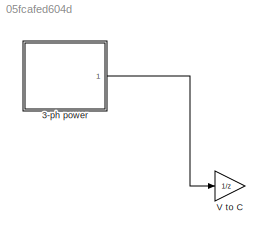
MODEL slx_05fcafed604d
KIND model
CONFIG AbsTol = auto
CONFIG EnableMultiTasking = off
CONFIG FixedStep = sampletime
CONFIG MaxStep = 1e-4
CONFIG MinStep = auto
CONFIG RelTol = 1e-5
CONFIG SampleTimeConstraint = Unconstrained
CONFIG Solver = VariableStepAuto
CONFIG SolverName = VariableStepAuto
CONFIG StartTime = 0.0
CONFIG StopTime = 0.2
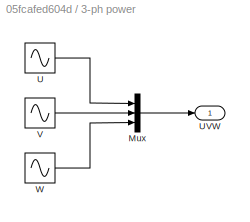
BLOCK [SubSystem] 3-ph power
  Ports = [0, 1]
  RequestExecContextInheritance = off
BLOCK [Mux] 3-ph power/Mux
  DisplayOption = bar
  Inputs = 3
  Ports = [3, 1]
BLOCK [Sin] 3-ph power/U
  Amplitude = U1
  Frequency = 2*pi*f
  Ports = [0, 1]
  SampleTime = 0
BLOCK [Outport] 3-ph power/UVW
  IconDisplay = Port number
BLOCK [Sin] 3-ph power/V
  Amplitude = U1
  Frequency = 2*pi*f
  Phase = -2*pi/3
  Ports = [0, 1]
  SampleTime = 0
BLOCK [Sin] 3-ph power/W
  Amplitude = U1
  Frequency = 2*pi*f
  Phase = -4*pi/3
  Ports = [0, 1]
  SampleTime = 0
BLOCK [Gain] V to C
  Gain = 1/z
  OutDataTypeStr = Inherit: Inherit via internal rule
  ParamDataTypeStr = Inherit: Inherit via internal rule
  SaturateOnIntegerOverflow = off
LINE 3-ph power/Mux:1 -> 3-ph power/UVW:1
LINE 3-ph power/U:1 -> 3-ph power/Mux:1
LINE 3-ph power/V:1 -> 3-ph power/Mux:2
LINE 3-ph power/W:1 -> 3-ph power/Mux:3
LINE 3-ph power:1 -> V to C:1
